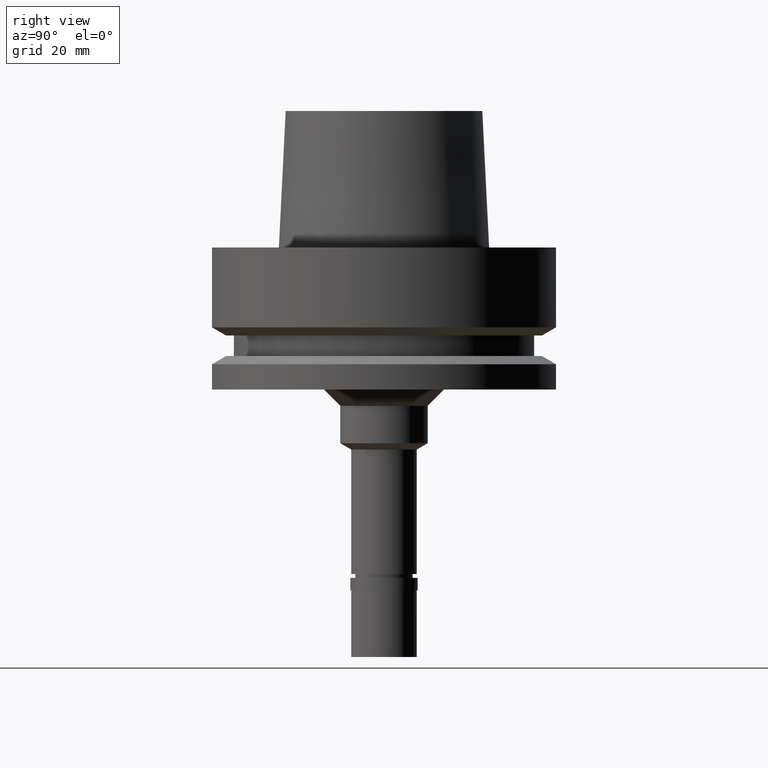
[diagram: clean part render]
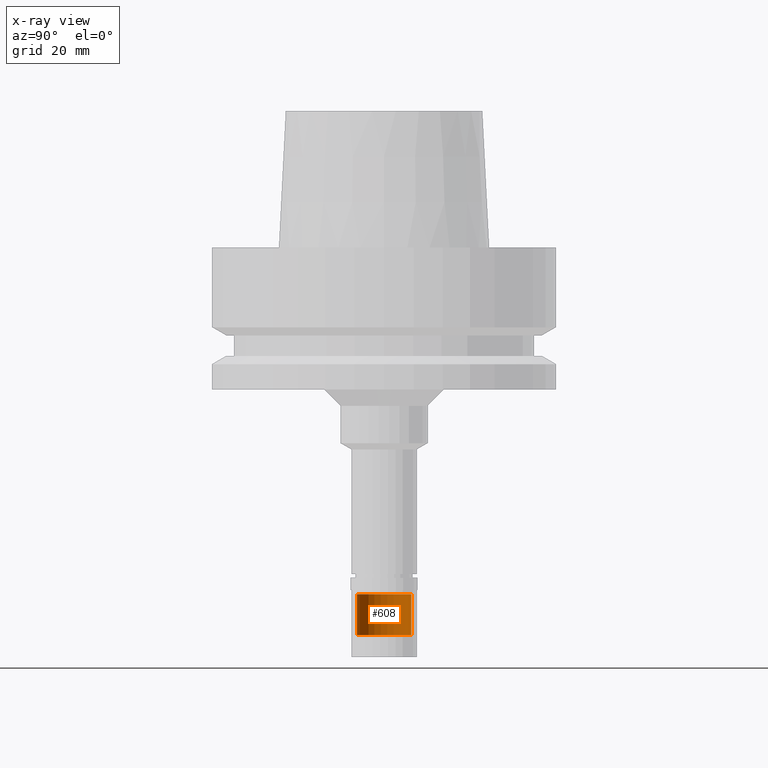
[diagram: x-ray — body ghosted, one internal face saturated and labeled with its STEP entity id]
A machine part, right view, then the same camera in x-ray: the body is ghosted and one INTERNAL B-rep face — a face not visible from any outside direction — is saturated and labeled: STEP entity #608.
In plain terms, the highlighted cylindrical surface (edge-blend (fillet) strip) has radius 5 mm, axis along (0, 0, 1).
Its self-contained STEP definition (entity closure, byte-faithful):
#40 = CIRCLE ( 'NONE', #2732, 5.000000000000000000 ) ;
#43 = EDGE_CURVE ( 'NONE', #785, #631, #2590, .T. ) ;
#124 = EDGE_CURVE ( 'NONE', #249, #510, #1230, .T. ) ;
#249 = VERTEX_POINT ( 'NONE', #636 ) ;
#382 = CARTESIAN_POINT ( 'NONE',  ( 0.0000000000000000000, 0.0000000000000000000, -63.50000000000000000 ) ) ;
#510 = VERTEX_POINT ( 'NONE', #2259 ) ;
#593 = EDGE_CURVE ( 'NONE', #785, #249, #40, .T. ) ;
#608 = ADVANCED_FACE ( 'NONE', ( #1946 ), #1507, .T. ) ;
#621 = CARTESIAN_POINT ( 'NONE',  ( 0.0000000000000000000, 5.000000000000000000, -63.50000000000000000 ) ) ;
#631 = VERTEX_POINT ( 'NONE', #849 ) ;
#636 = CARTESIAN_POINT ( 'NONE',  ( 0.0000000000000000000, 5.000000000000000000, -63.50000000000000000 ) ) ;
#726 = CARTESIAN_POINT ( 'NONE',  ( 0.0000000000000000000, 0.0000000000000000000, -71.00000000000000000 ) ) ;
#760 = ORIENTED_EDGE ( 'NONE', *, *, #593, .T. ) ;
#785 = VERTEX_POINT ( 'NONE', #2665 ) ;
#805 = CIRCLE ( 'NONE', #2012, 5.000000000000000000 ) ;
#849 = CARTESIAN_POINT ( 'NONE',  ( 0.0000000000000000000, -5.000000000000000000, -71.00000000000000000 ) ) ;
#942 = ORIENTED_EDGE ( 'NONE', *, *, #1047, .T. ) ;
#1047 = EDGE_CURVE ( 'NONE', #510, #631, #805, .T. ) ;
#1099 = DIRECTION ( 'NONE',  ( 0.0000000000000000000, 0.0000000000000000000, -1.000000000000000000 ) ) ;
#1230 = LINE ( 'NONE', #621, #2055 ) ;
#1259 = DIRECTION ( 'NONE',  ( 0.0000000000000000000, 0.0000000000000000000, -1.000000000000000000 ) ) ;
#1367 = DIRECTION ( 'NONE',  ( 0.0000000000000000000, 0.0000000000000000000, 1.000000000000000000 ) ) ;
#1388 = ORIENTED_EDGE ( 'NONE', *, *, #124, .T. ) ;
#1504 = CARTESIAN_POINT ( 'NONE',  ( 0.0000000000000000000, -5.000000000000000000, -63.50000000000000000 ) ) ;
#1507 = CYLINDRICAL_SURFACE ( 'NONE', #2277, 5.000000000000000000 ) ;
#1534 = ORIENTED_EDGE ( 'NONE', *, *, #43, .F. ) ;
#1561 = VECTOR ( 'NONE', #1099, 1000.000000000000000 ) ;
#1733 = DIRECTION ( 'NONE',  ( 0.0000000000000000000, 0.0000000000000000000, -1.000000000000000000 ) ) ;
#1916 = DIRECTION ( 'NONE',  ( 0.0000000000000000000, 1.000000000000000000, 0.0000000000000000000 ) ) ;
#1946 = FACE_OUTER_BOUND ( 'NONE', #2773, .T. ) ;
#1981 = DIRECTION ( 'NONE',  ( 0.0000000000000000000, 1.000000000000000000, 0.0000000000000000000 ) ) ;
#2012 = AXIS2_PLACEMENT_3D ( 'NONE', #726, #1367, #1981 ) ;
#2055 = VECTOR ( 'NONE', #1259, 1000.000000000000000 ) ;
#2147 = DIRECTION ( 'NONE',  ( 0.0000000000000000000, -1.000000000000000000, 0.0000000000000000000 ) ) ;
#2177 = CARTESIAN_POINT ( 'NONE',  ( 0.0000000000000000000, 0.0000000000000000000, -75.80000000000001137 ) ) ;
#2259 = CARTESIAN_POINT ( 'NONE',  ( 0.0000000000000000000, 5.000000000000000000, -71.00000000000000000 ) ) ;
#2277 = AXIS2_PLACEMENT_3D ( 'NONE', #2177, #2580, #1916 ) ;
#2580 = DIRECTION ( 'NONE',  ( 0.0000000000000000000, 0.0000000000000000000, 1.000000000000000000 ) ) ;
#2590 = LINE ( 'NONE', #1504, #1561 ) ;
#2665 = CARTESIAN_POINT ( 'NONE',  ( 0.0000000000000000000, -5.000000000000000000, -63.50000000000000000 ) ) ;
#2732 = AXIS2_PLACEMENT_3D ( 'NONE', #382, #1733, #2147 ) ;
#2773 = EDGE_LOOP ( 'NONE', ( #942, #1534, #760, #1388 ) ) ;